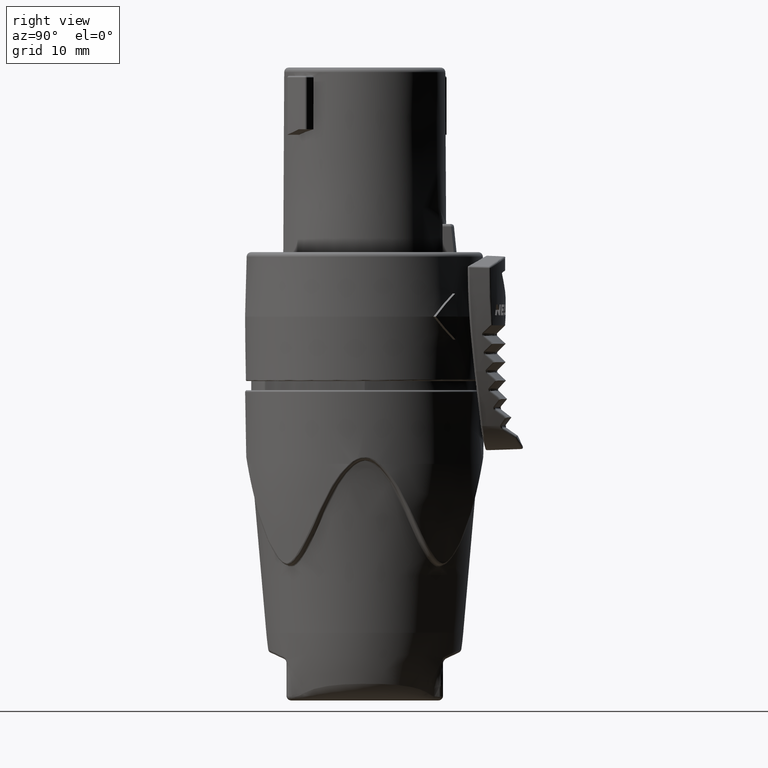
[diagram: clean part render]
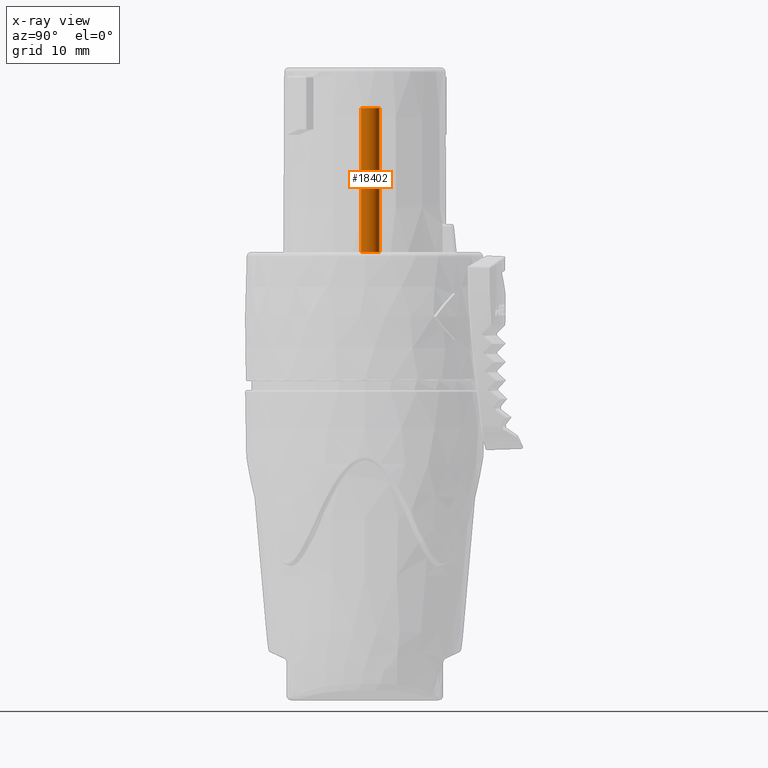
[diagram: x-ray — body ghosted, one internal face saturated and labeled with its STEP entity id]
A machine part, right view, then the same camera in x-ray: the body is ghosted and one INTERNAL B-rep face — a face not visible from any outside direction — is saturated and labeled: STEP entity #18402.
In plain terms, the highlighted cylindrical surface (edge-blend (fillet) strip) has radius 1 mm, axis along (0, 0, -1).
Its self-contained STEP definition (entity closure, byte-faithful):
#335=CARTESIAN_POINT('',(6.973362886642E0,6.100901992336E-1,1.E1));
#336=DIRECTION('',(0.E0,0.E0,-1.E0));
#337=DIRECTION('',(0.E0,1.E0,0.E0));
#338=AXIS2_PLACEMENT_3D('',#335,#336,#337);
#1518=CARTESIAN_POINT('',(6.973362886642E0,6.100901992336E-1,2.565E1));
#1519=DIRECTION('',(0.E0,0.E0,-1.E0));
#1520=DIRECTION('',(0.E0,1.E0,0.E0));
#1521=AXIS2_PLACEMENT_3D('',#1518,#1519,#1520);
#3459=DIRECTION('',(0.E0,0.E0,-1.E0));
#3460=VECTOR('',#3459,1.565E1);
#3461=CARTESIAN_POINT('',(6.973362886642E0,-3.899098007664E-1,2.565E1));
#3462=LINE('',#3461,#3460);
#3463=DIRECTION('',(0.E0,0.E0,-1.E0));
#3464=VECTOR('',#3463,1.565E1);
#3465=CARTESIAN_POINT('',(6.973362886642E0,1.610090199234E0,2.565E1));
#3466=LINE('',#3465,#3464);
#12313=CARTESIAN_POINT('',(6.973362886642E0,-3.899098007664E-1,2.565E1));
#12315=VERTEX_POINT('',#12313);
#12318=CARTESIAN_POINT('',(6.973362886642E0,1.610090199234E0,2.565E1));
#12320=VERTEX_POINT('',#12318);
#12331=CARTESIAN_POINT('',(6.973362886642E0,-3.899098007664E-1,1.E1));
#12332=CARTESIAN_POINT('',(6.973362886642E0,1.610090199234E0,1.E1));
#12333=VERTEX_POINT('',#12331);
#12334=VERTEX_POINT('',#12332);
#18391=CARTESIAN_POINT('',(6.973362886642E0,6.100901992336E-1,2.565E1));
#18392=DIRECTION('',(0.E0,0.E0,-1.E0));
#18393=DIRECTION('',(0.E0,-1.E0,0.E0));
#18394=AXIS2_PLACEMENT_3D('',#18391,#18392,#18393);
#18395=CYLINDRICAL_SURFACE('',#18394,1.E0);
#18396=ORIENTED_EDGE('',*,*,#14407,.F.);
#18397=ORIENTED_EDGE('',*,*,#18384,.T.);
#18398=ORIENTED_EDGE('',*,*,#12708,.T.);
#18399=ORIENTED_EDGE('',*,*,#18381,.F.);
#18400=EDGE_LOOP('',(#18396,#18397,#18398,#18399));
#18401=FACE_OUTER_BOUND('',#18400,.F.);
#18402=ADVANCED_FACE('',(#18401),#18395,.T.);
#339=CIRCLE('',#338,1.E0);
#1522=CIRCLE('',#1521,1.E0);
#12708=EDGE_CURVE('',#12334,#12333,#339,.T.);
#14407=EDGE_CURVE('',#12320,#12315,#1522,.T.);
#18381=EDGE_CURVE('',#12315,#12333,#3462,.T.);
#18384=EDGE_CURVE('',#12320,#12334,#3466,.T.);